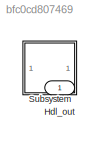
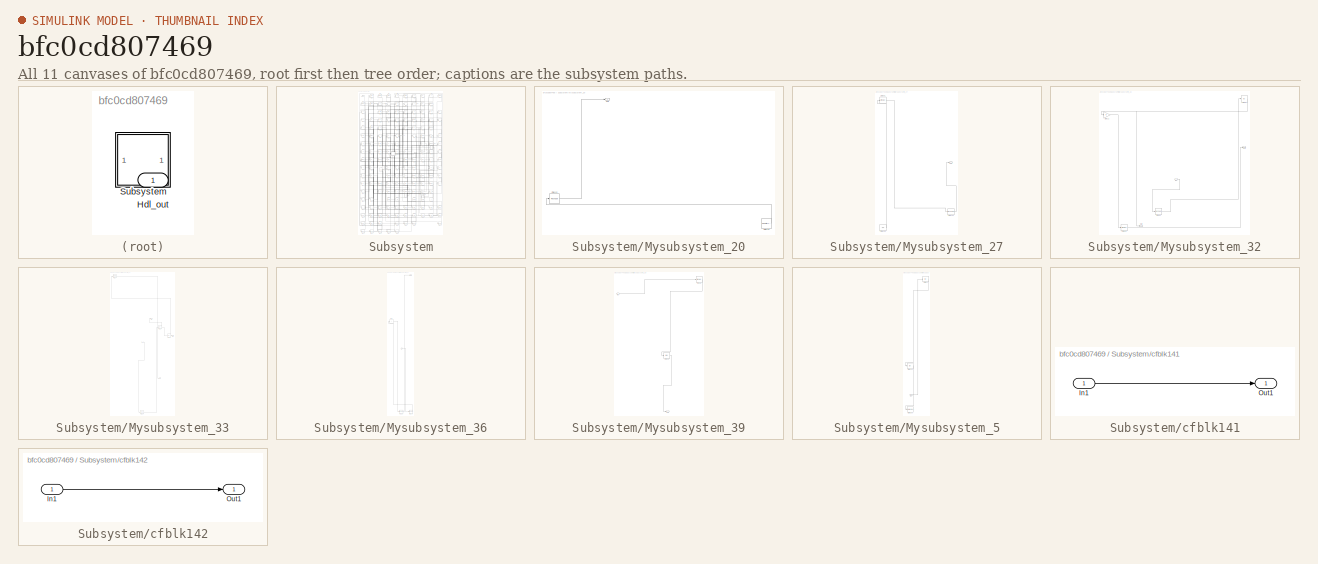
[diagram: thumbnail index - all 11 canvases of the model, root first then tree order]
MODEL slx_bfc0cd807469
KIND model
CONFIG AbsTol = auto
CONFIG EnableMultiTasking = off
CONFIG FixedStep = auto
CONFIG MaxStep = auto
CONFIG MinStep = auto
CONFIG RelTol = 1e-3
CONFIG SampleTimeConstraint = Unconstrained
CONFIG SolverName = VariableStepAuto
CONFIG StartTime = 0.0
CONFIG StopTime = 10.0
BLOCK [Outport] Hdl_out
  OutDataTypeStr = uint8
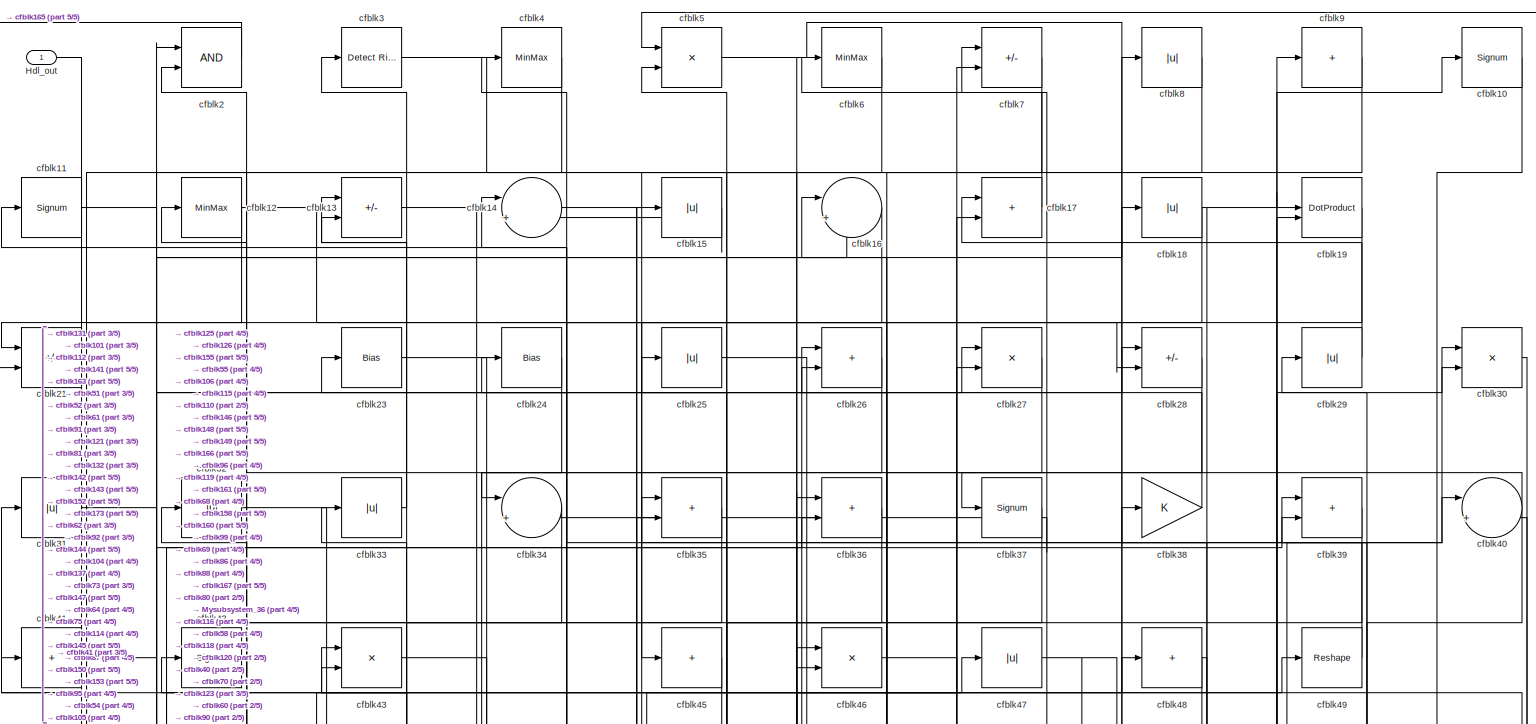
[diagram: Subsystem - part 1/5, full width, top band]
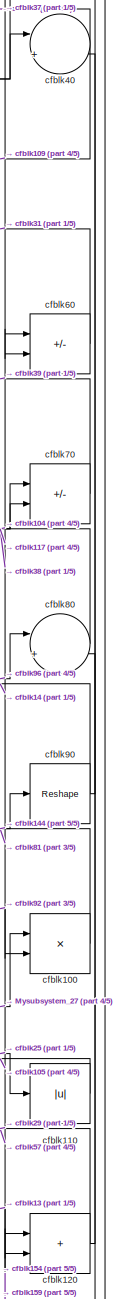
[diagram: Subsystem - part 2/5, middle right region]
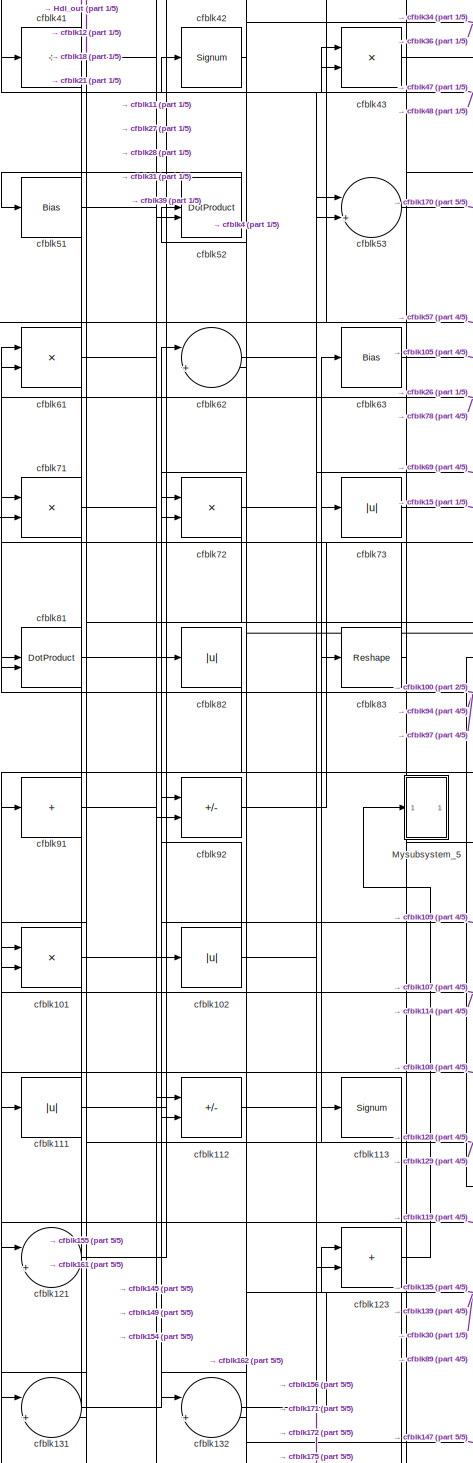
[diagram: Subsystem - part 3/5, middle left region]
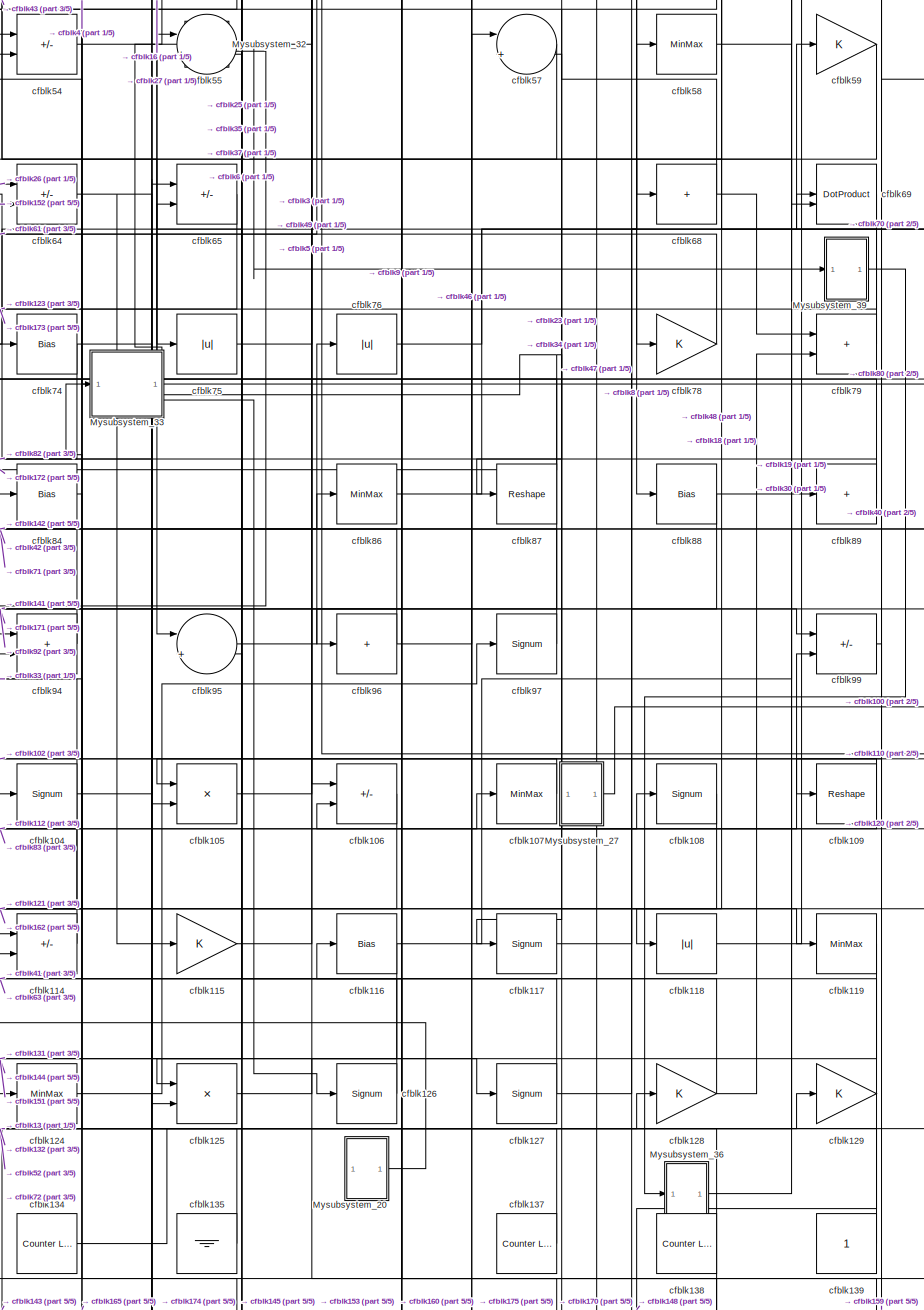
[diagram: Subsystem - part 4/5, central region]
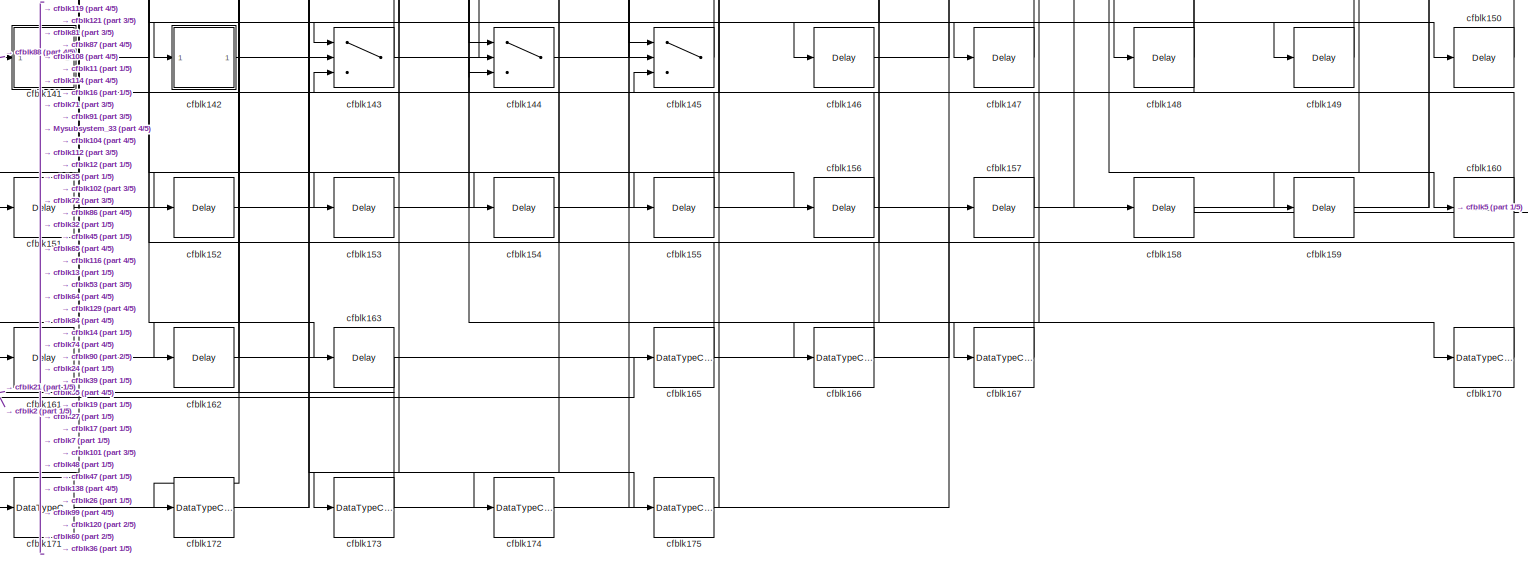
[diagram: Subsystem - part 5/5, full width, bottom band]
BLOCK [SubSystem] Subsystem
BLOCK [Outport] Subsystem/Hdl_out
  OutDataTypeStr = uint8
BLOCK [SubSystem] Subsystem/Mysubsystem_20
  RTWFcnName = Mysubsystem_20
  RTWFcnNameOpts = User specified
  RTWFileNameOpts = Use function name
  RTWSystemCode = Reusable function
  TreatAsAtomicUnit = on
BLOCK [Outport] Subsystem/Mysubsystem_20/Out1
BLOCK [Reshape] Subsystem/Mysubsystem_20/cfblk122
BLOCK [Reference] Subsystem/Mysubsystem_20/cfblk140  REF=hdlsllib/Sources/Counter
Limited
  SourceBlock = hdlsllib/Sources/Counter\nLimited
  SourceType = Counter Limited
BLOCK [SubSystem] Subsystem/Mysubsystem_27
  RTWFcnName = Mysubsystem_27
  RTWFcnNameOpts = User specified
  RTWFileNameOpts = Use function name
  RTWSystemCode = Reusable function
  TreatAsAtomicUnit = on
BLOCK [Outport] Subsystem/Mysubsystem_27/Out1
BLOCK [Reshape] Subsystem/Mysubsystem_27/cfblk130
BLOCK [Ground] Subsystem/Mysubsystem_27/cfblk136
BLOCK [MinMax] Subsystem/Mysubsystem_27/cfblk56
BLOCK [SubSystem] Subsystem/Mysubsystem_32
  RTWFcnName = Mysubsystem_32
  RTWFcnNameOpts = User specified
  RTWFileNameOpts = Use function name
  RTWSystemCode = Reusable function
  TreatAsAtomicUnit = on
BLOCK [Inport] Subsystem/Mysubsystem_32/In1
BLOCK [Outport] Subsystem/Mysubsystem_32/Out1
BLOCK [Outport] Subsystem/Mysubsystem_32/Out2
  Port = 2
BLOCK [Abs] Subsystem/Mysubsystem_32/cfblk20
  SaturateOnIntegerOverflow = off
BLOCK [Gain] Subsystem/Mysubsystem_32/cfblk22
BLOCK [Reshape] Subsystem/Mysubsystem_32/cfblk85
BLOCK [MinMax] Subsystem/Mysubsystem_32/cfblk93
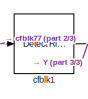
[diagram: Subsystem/Mysubsystem_33 - part 1/3, top left region]
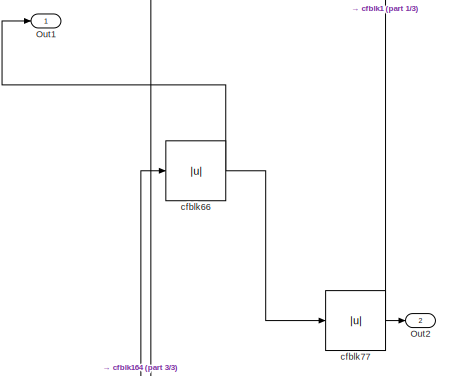
[diagram: Subsystem/Mysubsystem_33 - part 2/3, middle right region]
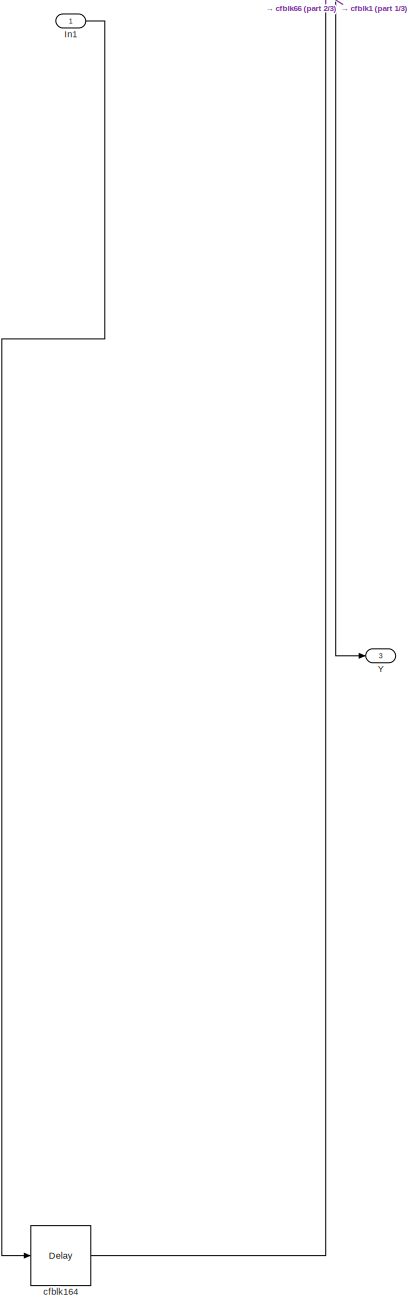
[diagram: Subsystem/Mysubsystem_33 - part 3/3, bottom center region]
BLOCK [SubSystem] Subsystem/Mysubsystem_33
  RTWFcnName = Mysubsystem_33
  RTWFcnNameOpts = User specified
  RTWFileNameOpts = Use function name
  RTWSystemCode = Reusable function
  TreatAsAtomicUnit = on
BLOCK [Inport] Subsystem/Mysubsystem_33/In1
BLOCK [Outport] Subsystem/Mysubsystem_33/Out1
BLOCK [Outport] Subsystem/Mysubsystem_33/Out2
  Port = 2
BLOCK [Outport] Subsystem/Mysubsystem_33/Y
  Port = 3
BLOCK [Reference] Subsystem/Mysubsystem_33/cfblk1  REF=hdlsllib/Logic and Bit
Operations/Detect Rise
Nonnegative
  SourceBlock = hdlsllib/Logic and Bit\nOperations/Detect Rise\nNonnegative
  SourceType = Detect Rise Nonnegative
BLOCK [Delay] Subsystem/Mysubsystem_33/cfblk164
  InputPortMap = u0
  SampleTime = 1
BLOCK [Abs] Subsystem/Mysubsystem_33/cfblk66
  SaturateOnIntegerOverflow = off
BLOCK [Abs] Subsystem/Mysubsystem_33/cfblk77
  SaturateOnIntegerOverflow = off
BLOCK [SubSystem] Subsystem/Mysubsystem_36
  RTWFcnName = Mysubsystem_36
  RTWFcnNameOpts = User specified
  RTWFileNameOpts = Use function name
  RTWSystemCode = Reusable function
  TreatAsAtomicUnit = on
BLOCK [Inport] Subsystem/Mysubsystem_36/In1
BLOCK [Outport] Subsystem/Mysubsystem_36/Out1
BLOCK [DataTypeConversion] Subsystem/Mysubsystem_36/cfblk168
  OutDataTypeStr = uint8
  RndMeth = Floor
  SaturateOnIntegerOverflow = off
BLOCK [DataTypeConversion] Subsystem/Mysubsystem_36/cfblk169
  OutDataTypeStr = uint8
  RndMeth = Floor
  SaturateOnIntegerOverflow = off
BLOCK [Sum] Subsystem/Mysubsystem_36/cfblk67
  IconShape = rectangular
  Inputs = +
BLOCK [SubSystem] Subsystem/Mysubsystem_39
  RTWFcnName = Mysubsystem_39
  RTWFcnNameOpts = User specified
  RTWFileNameOpts = Use function name
  RTWSystemCode = Reusable function
  TreatAsAtomicUnit = on
BLOCK [Inport] Subsystem/Mysubsystem_39/In1
BLOCK [Outport] Subsystem/Mysubsystem_39/Out1
BLOCK [MinMax] Subsystem/Mysubsystem_39/cfblk50
BLOCK [Bias] Subsystem/Mysubsystem_39/cfblk98
  Bias = 0.0
  SaturateOnIntegerOverflow = off
BLOCK [SubSystem] Subsystem/Mysubsystem_5
  RTWFcnName = Mysubsystem_5
  RTWFcnNameOpts = User specified
  RTWFileNameOpts = Use function name
  RTWSystemCode = Reusable function
  TreatAsAtomicUnit = on
BLOCK [Inport] Subsystem/Mysubsystem_5/In1
BLOCK [Abs] Subsystem/Mysubsystem_5/cfblk103
  SaturateOnIntegerOverflow = off
BLOCK [ToWorkspace] Subsystem/Mysubsystem_5/cfblk133
  MaxDataPoints = inf
  SampleTime = -1
  SaveFormat = Timeseries
  VariableName = simout
BLOCK [Abs] Subsystem/Mysubsystem_5/cfblk44
  SaturateOnIntegerOverflow = off
BLOCK [Signum] Subsystem/cfblk10
BLOCK [Product] Subsystem/cfblk100
  Inputs = */
  OutDataTypeStr = uint8
  RndMeth = Zero
  SaturateOnIntegerOverflow = on
BLOCK [Product] Subsystem/cfblk101
  Inputs = */
  OutDataTypeStr = uint8
  RndMeth = Zero
  SaturateOnIntegerOverflow = on
BLOCK [Abs] Subsystem/cfblk102
  OutDataTypeStr = uint8
  SaturateOnIntegerOverflow = off
BLOCK [Signum] Subsystem/cfblk104
BLOCK [Product] Subsystem/cfblk105
  Inputs = */
  OutDataTypeStr = uint8
  RndMeth = Zero
  SaturateOnIntegerOverflow = on
BLOCK [Sum] Subsystem/cfblk106
  IconShape = rectangular
  Inputs = +-
  OutDataTypeStr = uint8
BLOCK [MinMax] Subsystem/cfblk107
  OutDataTypeStr = uint8
BLOCK [Signum] Subsystem/cfblk108
BLOCK [Reshape] Subsystem/cfblk109
BLOCK [Signum] Subsystem/cfblk11
BLOCK [Abs] Subsystem/cfblk110
  OutDataTypeStr = uint8
  SaturateOnIntegerOverflow = off
BLOCK [Abs] Subsystem/cfblk111
  OutDataTypeStr = uint8
  SaturateOnIntegerOverflow = off
BLOCK [Sum] Subsystem/cfblk112
  IconShape = rectangular
  Inputs = +-
  OutDataTypeStr = uint8
BLOCK [Signum] Subsystem/cfblk113
BLOCK [Sum] Subsystem/cfblk114
  IconShape = rectangular
  Inputs = +-
  OutDataTypeStr = uint8
BLOCK [Gain] Subsystem/cfblk115
  OutDataTypeStr = uint8
BLOCK [Bias] Subsystem/cfblk116
  Bias = 0.0
  SaturateOnIntegerOverflow = off
BLOCK [Signum] Subsystem/cfblk117
BLOCK [Abs] Subsystem/cfblk118
  OutDataTypeStr = uint8
  SaturateOnIntegerOverflow = off
BLOCK [MinMax] Subsystem/cfblk119
  OutDataTypeStr = uint8
BLOCK [MinMax] Subsystem/cfblk12
  OutDataTypeStr = uint8
BLOCK [Sum] Subsystem/cfblk120
  IconShape = rectangular
  OutDataTypeStr = uint8
BLOCK [Sum] Subsystem/cfblk121
  Inputs = |++
  OutDataTypeStr = uint8
BLOCK [Sum] Subsystem/cfblk123
  IconShape = rectangular
  OutDataTypeStr = uint8
BLOCK [MinMax] Subsystem/cfblk124
  OutDataTypeStr = uint8
BLOCK [Product] Subsystem/cfblk125
  Inputs = */
  OutDataTypeStr = uint8
  RndMeth = Zero
  SaturateOnIntegerOverflow = on
BLOCK [Signum] Subsystem/cfblk126
BLOCK [Signum] Subsystem/cfblk127
BLOCK [Gain] Subsystem/cfblk128
  OutDataTypeStr = uint8
BLOCK [Gain] Subsystem/cfblk129
  OutDataTypeStr = uint8
BLOCK [Sum] Subsystem/cfblk13
  IconShape = rectangular
  Inputs = +-
  OutDataTypeStr = uint8
BLOCK [Sum] Subsystem/cfblk131
  Inputs = |++
  OutDataTypeStr = uint8
BLOCK [Sum] Subsystem/cfblk132
  Inputs = |++
  OutDataTypeStr = uint8
BLOCK [Reference] Subsystem/cfblk134  REF=hdlsllib/Sources/Counter
Limited
  SourceBlock = hdlsllib/Sources/Counter\nLimited
  SourceType = Counter Limited
BLOCK [Ground] Subsystem/cfblk135
BLOCK [Reference] Subsystem/cfblk137  REF=hdlsllib/Sources/Counter
Limited
  SourceBlock = hdlsllib/Sources/Counter\nLimited
  SourceType = Counter Limited
BLOCK [Reference] Subsystem/cfblk138  REF=hdlsllib/Sources/Counter
Limited
  SourceBlock = hdlsllib/Sources/Counter\nLimited
  SourceType = Counter Limited
BLOCK [Constant] Subsystem/cfblk139
  OutDataTypeStr = uint8
  SampleTime = -1
BLOCK [Sum] Subsystem/cfblk14
  Inputs = |++
  OutDataTypeStr = uint8
BLOCK [SubSystem] Subsystem/cfblk141
  LibrarySourceBlock = hdlsllib/Ports &\nSubsystems/Subsystem
BLOCK [Inport] Subsystem/cfblk141/In1
BLOCK [Outport] Subsystem/cfblk141/Out1
BLOCK [SubSystem] Subsystem/cfblk142
  LibrarySourceBlock = hdlsllib/Ports &\nSubsystems/Subsystem
BLOCK [Inport] Subsystem/cfblk142/In1
BLOCK [Outport] Subsystem/cfblk142/Out1
BLOCK [Switch] Subsystem/cfblk143
  InputSameDT = off
  OutDataTypeStr = uint8
  SaturateOnIntegerOverflow = off
BLOCK [Switch] Subsystem/cfblk144
  InputSameDT = off
  OutDataTypeStr = uint8
  SaturateOnIntegerOverflow = off
BLOCK [Switch] Subsystem/cfblk145
  InputSameDT = off
  OutDataTypeStr = uint8
  SaturateOnIntegerOverflow = off
BLOCK [Delay] Subsystem/cfblk146
  InputPortMap = u0
  SampleTime = 1
BLOCK [Delay] Subsystem/cfblk147
  InputPortMap = u0
  SampleTime = 1
BLOCK [Delay] Subsystem/cfblk148
  InputPortMap = u0
  SampleTime = 1
BLOCK [Delay] Subsystem/cfblk149
  InputPortMap = u0
  SampleTime = 1
BLOCK [Abs] Subsystem/cfblk15
  OutDataTypeStr = uint8
  SaturateOnIntegerOverflow = off
BLOCK [Delay] Subsystem/cfblk150
  InputPortMap = u0
  SampleTime = 1
BLOCK [Delay] Subsystem/cfblk151
  InputPortMap = u0
  SampleTime = 1
BLOCK [Delay] Subsystem/cfblk152
  InputPortMap = u0
  SampleTime = 1
BLOCK [Delay] Subsystem/cfblk153
  InputPortMap = u0
  SampleTime = 1
BLOCK [Delay] Subsystem/cfblk154
  InputPortMap = u0
  SampleTime = 1
BLOCK [Delay] Subsystem/cfblk155
  InputPortMap = u0
  SampleTime = 1
BLOCK [Delay] Subsystem/cfblk156
  InputPortMap = u0
  SampleTime = 1
BLOCK [Delay] Subsystem/cfblk157
  InputPortMap = u0
  SampleTime = 1
BLOCK [Delay] Subsystem/cfblk158
  InputPortMap = u0
  SampleTime = 1
BLOCK [Delay] Subsystem/cfblk159
  InputPortMap = u0
  SampleTime = 1
BLOCK [Sum] Subsystem/cfblk16
  Inputs = |++
  OutDataTypeStr = uint8
BLOCK [Delay] Subsystem/cfblk160
  InputPortMap = u0
  SampleTime = 1
BLOCK [Delay] Subsystem/cfblk161
  InputPortMap = u0
  SampleTime = 1
BLOCK [Delay] Subsystem/cfblk162
  InputPortMap = u0
  SampleTime = 1
BLOCK [Delay] Subsystem/cfblk163
  InputPortMap = u0
  SampleTime = 1
BLOCK [DataTypeConversion] Subsystem/cfblk165
  OutDataTypeStr = uint8
  RndMeth = Floor
  SaturateOnIntegerOverflow = off
BLOCK [DataTypeConversion] Subsystem/cfblk166
  OutDataTypeStr = uint8
  RndMeth = Floor
  SaturateOnIntegerOverflow = off
BLOCK [DataTypeConversion] Subsystem/cfblk167
  OutDataTypeStr = uint8
  RndMeth = Floor
  SaturateOnIntegerOverflow = off
BLOCK [Sum] Subsystem/cfblk17
  IconShape = rectangular
  OutDataTypeStr = uint8
BLOCK [DataTypeConversion] Subsystem/cfblk170
  OutDataTypeStr = uint8
  RndMeth = Floor
  SaturateOnIntegerOverflow = off
BLOCK [DataTypeConversion] Subsystem/cfblk171
  OutDataTypeStr = uint8
  RndMeth = Floor
  SaturateOnIntegerOverflow = off
BLOCK [DataTypeConversion] Subsystem/cfblk172
  OutDataTypeStr = uint8
  RndMeth = Floor
  SaturateOnIntegerOverflow = off
BLOCK [DataTypeConversion] Subsystem/cfblk173
  OutDataTypeStr = uint8
  RndMeth = Floor
  SaturateOnIntegerOverflow = off
BLOCK [DataTypeConversion] Subsystem/cfblk174
  OutDataTypeStr = uint8
  RndMeth = Floor
  SaturateOnIntegerOverflow = off
BLOCK [DataTypeConversion] Subsystem/cfblk175
  OutDataTypeStr = uint8
  RndMeth = Floor
  SaturateOnIntegerOverflow = off
BLOCK [Abs] Subsystem/cfblk18
  OutDataTypeStr = uint8
  SaturateOnIntegerOverflow = off
BLOCK [DotProduct] Subsystem/cfblk19
  OutDataTypeStr = uint8
BLOCK [Logic] Subsystem/cfblk2
  AllPortsSameDT = off
  OutDataTypeStr = boolean
BLOCK [Sum] Subsystem/cfblk21
  IconShape = rectangular
  Inputs = +-
  OutDataTypeStr = uint8
BLOCK [Bias] Subsystem/cfblk23
  Bias = 0.0
  SaturateOnIntegerOverflow = off
BLOCK [Bias] Subsystem/cfblk24
  Bias = 0.0
  SaturateOnIntegerOverflow = off
BLOCK [Abs] Subsystem/cfblk25
  OutDataTypeStr = uint8
  SaturateOnIntegerOverflow = off
BLOCK [Sum] Subsystem/cfblk26
  IconShape = rectangular
  OutDataTypeStr = uint8
BLOCK [Product] Subsystem/cfblk27
  Inputs = */
  OutDataTypeStr = uint8
  RndMeth = Zero
  SaturateOnIntegerOverflow = on
BLOCK [Sum] Subsystem/cfblk28
  IconShape = rectangular
  Inputs = +-
  OutDataTypeStr = uint8
BLOCK [Abs] Subsystem/cfblk29
  OutDataTypeStr = uint8
  SaturateOnIntegerOverflow = off
BLOCK [Reference] Subsystem/cfblk3  REF=hdlsllib/Logic and Bit
Operations/Detect Rise
Nonnegative
  SourceBlock = hdlsllib/Logic and Bit\nOperations/Detect Rise\nNonnegative
  SourceType = Detect Rise Nonnegative
BLOCK [Product] Subsystem/cfblk30
  Inputs = */
  OutDataTypeStr = uint8
  RndMeth = Zero
  SaturateOnIntegerOverflow = on
BLOCK [Abs] Subsystem/cfblk31
  OutDataTypeStr = uint8
  SaturateOnIntegerOverflow = off
BLOCK [Abs] Subsystem/cfblk32
  OutDataTypeStr = uint8
  SaturateOnIntegerOverflow = off
BLOCK [Abs] Subsystem/cfblk33
  OutDataTypeStr = uint8
  SaturateOnIntegerOverflow = off
BLOCK [Sum] Subsystem/cfblk34
  Inputs = |++
  OutDataTypeStr = uint8
BLOCK [Sum] Subsystem/cfblk35
  IconShape = rectangular
  OutDataTypeStr = uint8
BLOCK [Sum] Subsystem/cfblk36
  IconShape = rectangular
  OutDataTypeStr = uint8
BLOCK [Signum] Subsystem/cfblk37
BLOCK [Gain] Subsystem/cfblk38
  OutDataTypeStr = uint8
BLOCK [Sum] Subsystem/cfblk39
  IconShape = rectangular
  OutDataTypeStr = uint8
BLOCK [MinMax] Subsystem/cfblk4
  OutDataTypeStr = uint8
BLOCK [Sum] Subsystem/cfblk40
  Inputs = |++
  OutDataTypeStr = uint8
BLOCK [Sum] Subsystem/cfblk41
  IconShape = rectangular
  Inputs = +
  OutDataTypeStr = uint8
BLOCK [Signum] Subsystem/cfblk42
BLOCK [Product] Subsystem/cfblk43
  Inputs = */
  OutDataTypeStr = uint8
  RndMeth = Zero
  SaturateOnIntegerOverflow = on
BLOCK [Sum] Subsystem/cfblk45
  IconShape = rectangular
  Inputs = +
  OutDataTypeStr = uint8
BLOCK [Product] Subsystem/cfblk46
  Inputs = */
  OutDataTypeStr = uint8
  RndMeth = Zero
  SaturateOnIntegerOverflow = on
BLOCK [Abs] Subsystem/cfblk47
  OutDataTypeStr = uint8
  SaturateOnIntegerOverflow = off
BLOCK [Sum] Subsystem/cfblk48
  IconShape = rectangular
  Inputs = +
  OutDataTypeStr = uint8
BLOCK [Reshape] Subsystem/cfblk49
BLOCK [Product] Subsystem/cfblk5
  Inputs = */
  OutDataTypeStr = uint8
  RndMeth = Zero
  SaturateOnIntegerOverflow = on
BLOCK [Bias] Subsystem/cfblk51
  Bias = 0.0
  SaturateOnIntegerOverflow = off
BLOCK [DotProduct] Subsystem/cfblk52
  OutDataTypeStr = uint8
BLOCK [Sum] Subsystem/cfblk53
  Inputs = |++
  OutDataTypeStr = uint8
BLOCK [Sum] Subsystem/cfblk54
  IconShape = rectangular
  Inputs = +-
  OutDataTypeStr = uint8
BLOCK [Sum] Subsystem/cfblk55
  Inputs = |++
  OutDataTypeStr = uint8
BLOCK [Sum] Subsystem/cfblk57
  Inputs = |++
  OutDataTypeStr = uint8
BLOCK [MinMax] Subsystem/cfblk58
  OutDataTypeStr = uint8
BLOCK [Gain] Subsystem/cfblk59
  OutDataTypeStr = uint8
BLOCK [MinMax] Subsystem/cfblk6
  OutDataTypeStr = uint8
BLOCK [Sum] Subsystem/cfblk60
  IconShape = rectangular
  Inputs = +-
  OutDataTypeStr = uint8
BLOCK [Product] Subsystem/cfblk61
  Inputs = */
  OutDataTypeStr = uint8
  RndMeth = Zero
  SaturateOnIntegerOverflow = on
BLOCK [Sum] Subsystem/cfblk62
  Inputs = |++
  OutDataTypeStr = uint8
BLOCK [Bias] Subsystem/cfblk63
  Bias = 0.0
  SaturateOnIntegerOverflow = off
BLOCK [Sum] Subsystem/cfblk64
  IconShape = rectangular
  Inputs = +-
  OutDataTypeStr = uint8
BLOCK [Sum] Subsystem/cfblk65
  IconShape = rectangular
  Inputs = +-
  OutDataTypeStr = uint8
BLOCK [Sum] Subsystem/cfblk68
  IconShape = rectangular
  Inputs = +
  OutDataTypeStr = uint8
BLOCK [DotProduct] Subsystem/cfblk69
  OutDataTypeStr = uint8
BLOCK [Sum] Subsystem/cfblk7
  IconShape = rectangular
  Inputs = +-
  OutDataTypeStr = uint8
BLOCK [Sum] Subsystem/cfblk70
  IconShape = rectangular
  Inputs = +-
  OutDataTypeStr = uint8
BLOCK [Product] Subsystem/cfblk71
  Inputs = */
  OutDataTypeStr = uint8
  RndMeth = Zero
  SaturateOnIntegerOverflow = on
BLOCK [Product] Subsystem/cfblk72
  Inputs = */
  OutDataTypeStr = uint8
  RndMeth = Zero
  SaturateOnIntegerOverflow = on
BLOCK [Abs] Subsystem/cfblk73
  OutDataTypeStr = uint8
  SaturateOnIntegerOverflow = off
BLOCK [Bias] Subsystem/cfblk74
  Bias = 0.0
  SaturateOnIntegerOverflow = off
BLOCK [Abs] Subsystem/cfblk75
  OutDataTypeStr = uint8
  SaturateOnIntegerOverflow = off
BLOCK [Abs] Subsystem/cfblk76
  OutDataTypeStr = uint8
  SaturateOnIntegerOverflow = off
BLOCK [Gain] Subsystem/cfblk78
  OutDataTypeStr = uint8
BLOCK [Sum] Subsystem/cfblk79
  IconShape = rectangular
  OutDataTypeStr = uint8
BLOCK [Abs] Subsystem/cfblk8
  OutDataTypeStr = uint8
  SaturateOnIntegerOverflow = off
BLOCK [Sum] Subsystem/cfblk80
  Inputs = |++
  OutDataTypeStr = uint8
BLOCK [DotProduct] Subsystem/cfblk81
  OutDataTypeStr = uint8
BLOCK [Abs] Subsystem/cfblk82
  OutDataTypeStr = uint8
  SaturateOnIntegerOverflow = off
BLOCK [Reshape] Subsystem/cfblk83
BLOCK [Bias] Subsystem/cfblk84
  Bias = 0.0
  SaturateOnIntegerOverflow = off
BLOCK [MinMax] Subsystem/cfblk86
  OutDataTypeStr = uint8
BLOCK [Reshape] Subsystem/cfblk87
BLOCK [Bias] Subsystem/cfblk88
  Bias = 0.0
  SaturateOnIntegerOverflow = off
BLOCK [Sum] Subsystem/cfblk89
  IconShape = rectangular
  Inputs = +
  OutDataTypeStr = uint8
BLOCK [Sum] Subsystem/cfblk9
  IconShape = rectangular
  Inputs = +
  OutDataTypeStr = uint8
BLOCK [Reshape] Subsystem/cfblk90
BLOCK [Sum] Subsystem/cfblk91
  IconShape = rectangular
  Inputs = +
  OutDataTypeStr = uint8
BLOCK [Sum] Subsystem/cfblk92
  IconShape = rectangular
  Inputs = +-
  OutDataTypeStr = uint8
BLOCK [Sum] Subsystem/cfblk94
  IconShape = rectangular
  OutDataTypeStr = uint8
BLOCK [Sum] Subsystem/cfblk95
  Inputs = |++
  OutDataTypeStr = uint8
BLOCK [Sum] Subsystem/cfblk96
  IconShape = rectangular
  Inputs = +
  OutDataTypeStr = uint8
BLOCK [Signum] Subsystem/cfblk97
BLOCK [Sum] Subsystem/cfblk99
  IconShape = rectangular
  Inputs = +-
  OutDataTypeStr = uint8
LINE Subsystem/Mysubsystem_20/cfblk122:1 -> Subsystem/Mysubsystem_20/Out1:1
LINE Subsystem/Mysubsystem_20/cfblk140:1 -> Subsystem/Mysubsystem_20/cfblk122:1
LINE Subsystem/Mysubsystem_20:1 -> Subsystem/cfblk84:1
LINE Subsystem/Mysubsystem_27/cfblk130:1 -> Subsystem/Mysubsystem_27/Out1:1
LINE Subsystem/Mysubsystem_27/cfblk136:1 -> Subsystem/Mysubsystem_27/cfblk56:1
LINE Subsystem/Mysubsystem_27/cfblk56:1 -> Subsystem/Mysubsystem_27/cfblk130:1
LINE Subsystem/Mysubsystem_27:1 -> Subsystem/cfblk100:1
LINE Subsystem/Mysubsystem_32/In1:1 -> Subsystem/Mysubsystem_32/cfblk85:1
NET Subsystem/Mysubsystem_32/cfblk20:1 -> Subsystem/Mysubsystem_32/Out2:1, Subsystem/Mysubsystem_32/cfblk22:1
LINE Subsystem/Mysubsystem_32/cfblk22:1 -> Subsystem/Mysubsystem_32/cfblk93:1
LINE Subsystem/Mysubsystem_32/cfblk85:1 -> Subsystem/Mysubsystem_32/cfblk20:1
LINE Subsystem/Mysubsystem_32/cfblk93:1 -> Subsystem/Mysubsystem_32/Out1:1
LINE Subsystem/Mysubsystem_32:1 -> Subsystem/Mysubsystem_39:1
LINE Subsystem/Mysubsystem_32:2 -> Subsystem/cfblk94:1
LINE Subsystem/Mysubsystem_33/In1:1 -> Subsystem/Mysubsystem_33/cfblk164:1
LINE Subsystem/Mysubsystem_33/cfblk164:1 -> Subsystem/Mysubsystem_33/cfblk66:1
LINE Subsystem/Mysubsystem_33/cfblk1:1 -> Subsystem/Mysubsystem_33/Y:1
NET Subsystem/Mysubsystem_33/cfblk66:1 -> Subsystem/Mysubsystem_33/Out1:1, Subsystem/Mysubsystem_33/cfblk77:1
NET Subsystem/Mysubsystem_33/cfblk77:1 -> Subsystem/Mysubsystem_33/Out2:1, Subsystem/Mysubsystem_33/cfblk1:1
LINE Subsystem/Mysubsystem_33:1 -> Subsystem/Mysubsystem_32:1
NET Subsystem/Mysubsystem_33:2 -> Subsystem/Mysubsystem_33:1, Subsystem/cfblk117:1, Subsystem/cfblk172:1
LINE Subsystem/Mysubsystem_33:3 -> Subsystem/cfblk126:1
LINE Subsystem/Mysubsystem_36/In1:1 -> Subsystem/Mysubsystem_36/cfblk169:1
LINE Subsystem/Mysubsystem_36/cfblk168:1 -> Subsystem/Mysubsystem_36/Out1:1
LINE Subsystem/Mysubsystem_36/cfblk169:1 -> Subsystem/Mysubsystem_36/cfblk67:1
LINE Subsystem/Mysubsystem_36/cfblk67:1 -> Subsystem/Mysubsystem_36/cfblk168:1
LINE Subsystem/Mysubsystem_36:1 -> Subsystem/cfblk19:1
LINE Subsystem/Mysubsystem_39/In1:1 -> Subsystem/Mysubsystem_39/cfblk50:1
LINE Subsystem/Mysubsystem_39/cfblk50:1 -> Subsystem/Mysubsystem_39/cfblk98:1
LINE Subsystem/Mysubsystem_39/cfblk98:1 -> Subsystem/Mysubsystem_39/Out1:1
LINE Subsystem/Mysubsystem_39:1 -> Subsystem/Mysubsystem_36:1
LINE Subsystem/Mysubsystem_5/In1:1 -> Subsystem/Mysubsystem_5/cfblk44:1
LINE Subsystem/Mysubsystem_5/cfblk103:1 -> Subsystem/Mysubsystem_5/cfblk133:1
LINE Subsystem/Mysubsystem_5/cfblk44:1 -> Subsystem/Mysubsystem_5/cfblk103:1
LINE Subsystem/cfblk100:1 -> Subsystem/cfblk81:1
LINE Subsystem/cfblk101:1 -> Subsystem/cfblk26:1
NET Subsystem/cfblk102:1 -> Subsystem/cfblk156:1, Subsystem/cfblk92:1
NET Subsystem/cfblk104:1 -> Subsystem/cfblk162:1, Subsystem/cfblk33:1, Subsystem/cfblk70:2
NET Subsystem/cfblk105:1 -> Subsystem/cfblk35:1, Subsystem/cfblk40:1
LINE Subsystem/cfblk106:1 -> Subsystem/cfblk124:1
LINE Subsystem/cfblk107:1 -> Subsystem/cfblk104:1
LINE Subsystem/cfblk108:1 -> Subsystem/cfblk121:2
NET Subsystem/cfblk109:1 -> Subsystem/cfblk102:1, Subsystem/cfblk106:2
LINE Subsystem/cfblk10:1 -> Subsystem/cfblk60:2
LINE Subsystem/cfblk110:1 -> Subsystem/cfblk105:1
LINE Subsystem/cfblk111:1 -> Subsystem/cfblk113:1
LINE Subsystem/cfblk112:1 -> Subsystem/cfblk107:1
LINE Subsystem/cfblk113:1 -> Subsystem/cfblk132:2
LINE Subsystem/cfblk114:1 -> Subsystem/cfblk83:1
LINE Subsystem/cfblk115:1 -> Subsystem/cfblk49:1
NET Subsystem/cfblk116:1 -> Subsystem/cfblk144:3, Subsystem/cfblk19:2, Subsystem/cfblk99:2
LINE Subsystem/cfblk117:1 -> Subsystem/cfblk70:1
LINE Subsystem/cfblk118:1 -> Subsystem/cfblk30:1
NET Subsystem/cfblk119:1 -> Subsystem/cfblk131:2, Subsystem/cfblk151:1
NET Subsystem/cfblk11:1 -> Subsystem/cfblk163:1, Subsystem/cfblk52:2
NET Subsystem/cfblk120:1 -> Subsystem/cfblk29:1, Subsystem/cfblk57:2, Subsystem/cfblk80:2
NET Subsystem/cfblk121:1 -> Subsystem/cfblk161:1, Subsystem/cfblk47:1
LINE Subsystem/cfblk123:1 -> Subsystem/Mysubsystem_5:1
LINE Subsystem/cfblk124:1 -> Subsystem/cfblk97:1
LINE Subsystem/cfblk125:1 -> Subsystem/cfblk127:1
LINE Subsystem/cfblk126:1 -> Subsystem/cfblk5:2
NET Subsystem/cfblk127:1 -> Subsystem/cfblk54:2, Subsystem/cfblk69:1
NET Subsystem/cfblk128:1 -> Subsystem/cfblk63:1, Subsystem/cfblk79:2
NET Subsystem/cfblk129:1 -> Subsystem/cfblk148:1, Subsystem/cfblk41:1
NET Subsystem/cfblk12:1 -> Subsystem/cfblk121:1, Subsystem/cfblk28:2
NET Subsystem/cfblk131:1 -> Subsystem/Hdl_out:1, Subsystem/cfblk62:1
LINE Subsystem/cfblk132:1 -> Subsystem/cfblk89:1
LINE Subsystem/cfblk134:1 -> Subsystem/cfblk128:1
LINE Subsystem/cfblk135:1 -> Subsystem/cfblk72:2
LINE Subsystem/cfblk137:1 -> Subsystem/cfblk13:1
NET Subsystem/cfblk138:1 -> Subsystem/cfblk145:3, Subsystem/cfblk94:2
LINE Subsystem/cfblk139:1 -> Subsystem/cfblk52:1
NET Subsystem/cfblk13:1 -> Subsystem/cfblk120:2, Subsystem/cfblk147:1
LINE Subsystem/cfblk141/In1:1 -> Subsystem/cfblk141/Out1:1
NET Subsystem/cfblk141:1 -> Subsystem/cfblk108:1, Subsystem/cfblk114:2, Subsystem/cfblk16:2
LINE Subsystem/cfblk142/In1:1 -> Subsystem/cfblk142/Out1:1
LINE Subsystem/cfblk142:1 -> Subsystem/cfblk86:1
NET Subsystem/cfblk143:1 -> Subsystem/cfblk129:1, Subsystem/cfblk32:1
LINE Subsystem/cfblk144:1 -> Subsystem/cfblk90:1
LINE Subsystem/cfblk145:1 -> Subsystem/cfblk24:1
LINE Subsystem/cfblk146:1 -> Subsystem/cfblk17:2
LINE Subsystem/cfblk147:1 -> Subsystem/cfblk101:2
LINE Subsystem/cfblk148:1 -> Subsystem/cfblk16:1
LINE Subsystem/cfblk149:1 -> Subsystem/cfblk26:2
LINE Subsystem/cfblk14:1 -> Subsystem/cfblk150:1
LINE Subsystem/cfblk150:1 -> Subsystem/cfblk36:1
LINE Subsystem/cfblk151:1 -> Subsystem/cfblk143:2
LINE Subsystem/cfblk152:1 -> Subsystem/cfblk64:2
LINE Subsystem/cfblk153:1 -> Subsystem/cfblk35:2
LINE Subsystem/cfblk154:1 -> Subsystem/cfblk120:1
LINE Subsystem/cfblk155:1 -> Subsystem/cfblk81:2
LINE Subsystem/cfblk156:1 -> Subsystem/cfblk144:2
LINE Subsystem/cfblk157:1 -> Subsystem/cfblk143:3
LINE Subsystem/cfblk158:1 -> Subsystem/cfblk5:1
LINE Subsystem/cfblk159:1 -> Subsystem/cfblk60:1
LINE Subsystem/cfblk15:1 -> Subsystem/cfblk14:2
LINE Subsystem/cfblk160:1 -> Subsystem/cfblk95:2
LINE Subsystem/cfblk161:1 -> Subsystem/cfblk7:2
LINE Subsystem/cfblk162:1 -> Subsystem/cfblk112:2
LINE Subsystem/cfblk163:1 -> Subsystem/cfblk21:2
LINE Subsystem/cfblk165:1 -> Subsystem/cfblk74:1
LINE Subsystem/cfblk166:1 -> Subsystem/cfblk2:1
LINE Subsystem/cfblk167:1 -> Subsystem/cfblk2:2
LINE Subsystem/cfblk16:1 -> Subsystem/cfblk95:1
LINE Subsystem/cfblk170:1 -> Subsystem/cfblk116:1
LINE Subsystem/cfblk171:1 -> Subsystem/cfblk53:1
LINE Subsystem/cfblk172:1 -> Subsystem/cfblk53:2
NET Subsystem/cfblk173:1 -> Subsystem/cfblk12:1, Subsystem/cfblk157:1
LINE Subsystem/cfblk174:1 -> Subsystem/cfblk65:1
LINE Subsystem/cfblk175:1 -> Subsystem/cfblk65:2
LINE Subsystem/cfblk17:1 -> Subsystem/cfblk6:1
NET Subsystem/cfblk18:1 -> Subsystem/cfblk10:1, Subsystem/cfblk131:1, Subsystem/cfblk68:1
NET Subsystem/cfblk19:1 -> Subsystem/cfblk114:1, Subsystem/cfblk166:1
LINE Subsystem/cfblk21:1 -> Subsystem/cfblk101:1
LINE Subsystem/cfblk23:1 -> Subsystem/cfblk75:1
LINE Subsystem/cfblk24:1 -> Subsystem/cfblk152:1
LINE Subsystem/cfblk25:1 -> Subsystem/cfblk110:1
LINE Subsystem/cfblk26:1 -> Subsystem/cfblk64:1
LINE Subsystem/cfblk27:1 -> Subsystem/cfblk146:1
LINE Subsystem/cfblk28:1 -> Subsystem/cfblk34:1
LINE Subsystem/cfblk29:1 -> Subsystem/cfblk7:1
LINE Subsystem/cfblk2:1 -> Subsystem/cfblk165:1
LINE Subsystem/cfblk30:1 -> Subsystem/cfblk123:1
LINE Subsystem/cfblk31:1 -> Subsystem/cfblk112:1
LINE Subsystem/cfblk32:1 -> Subsystem/cfblk144:1
NET Subsystem/cfblk33:1 -> Subsystem/cfblk13:2, Subsystem/cfblk3:1
LINE Subsystem/cfblk34:1 -> Subsystem/cfblk132:1
LINE Subsystem/cfblk35:1 -> Subsystem/cfblk142:1
LINE Subsystem/cfblk36:1 -> Subsystem/cfblk73:1
LINE Subsystem/cfblk37:1 -> Subsystem/cfblk55:2
LINE Subsystem/cfblk38:1 -> Subsystem/cfblk17:1
LINE Subsystem/cfblk39:1 -> Subsystem/cfblk155:1
LINE Subsystem/cfblk3:1 -> Subsystem/cfblk106:1
NET Subsystem/cfblk40:1 -> Subsystem/cfblk109:1, Subsystem/cfblk37:1
LINE Subsystem/cfblk41:1 -> Subsystem/cfblk28:1
LINE Subsystem/cfblk42:1 -> Subsystem/cfblk72:1
LINE Subsystem/cfblk43:1 -> Subsystem/cfblk78:1
LINE Subsystem/cfblk45:1 -> Subsystem/cfblk143:1
LINE Subsystem/cfblk46:1 -> Subsystem/cfblk119:1
NET Subsystem/cfblk47:1 -> Subsystem/cfblk158:1, Subsystem/cfblk160:1, Subsystem/cfblk99:1
NET Subsystem/cfblk48:1 -> Subsystem/cfblk118:1, Subsystem/cfblk167:1, Subsystem/cfblk54:1
LINE Subsystem/cfblk49:1 -> Subsystem/cfblk11:1
NET Subsystem/cfblk4:1 -> Subsystem/cfblk62:2, Subsystem/cfblk92:2
LINE Subsystem/cfblk51:1 -> Subsystem/cfblk18:1
LINE Subsystem/cfblk52:1 -> Subsystem/cfblk51:1
LINE Subsystem/cfblk53:1 -> Subsystem/cfblk170:1
LINE Subsystem/cfblk54:1 -> Subsystem/cfblk27:2
LINE Subsystem/cfblk55:1 -> Subsystem/cfblk46:2
LINE Subsystem/cfblk57:1 -> Subsystem/cfblk71:2
LINE Subsystem/cfblk58:1 -> Subsystem/cfblk9:1
LINE Subsystem/cfblk59:1 -> Subsystem/cfblk87:1
NET Subsystem/cfblk5:1 -> Subsystem/cfblk69:2, Subsystem/cfblk88:1
LINE Subsystem/cfblk60:1 -> Subsystem/cfblk31:1
LINE Subsystem/cfblk61:1 -> Subsystem/cfblk27:1
LINE Subsystem/cfblk62:1 -> Subsystem/cfblk48:1
LINE Subsystem/cfblk63:1 -> Subsystem/cfblk105:2
NET Subsystem/cfblk64:1 -> Subsystem/cfblk115:1, Subsystem/cfblk125:2
LINE Subsystem/cfblk65:1 -> Subsystem/cfblk173:1
NET Subsystem/cfblk68:1 -> Subsystem/cfblk23:1, Subsystem/cfblk34:2, Subsystem/cfblk79:1
LINE Subsystem/cfblk69:1 -> Subsystem/cfblk123:2
LINE Subsystem/cfblk6:1 -> Subsystem/cfblk125:1
LINE Subsystem/cfblk70:1 -> Subsystem/cfblk39:2
NET Subsystem/cfblk71:1 -> Subsystem/cfblk145:2, Subsystem/cfblk154:1
NET Subsystem/cfblk72:1 -> Subsystem/cfblk111:1, Subsystem/cfblk175:1
LINE Subsystem/cfblk73:1 -> Subsystem/cfblk15:1
NET Subsystem/cfblk74:1 -> Subsystem/cfblk145:1, Subsystem/cfblk153:1
LINE Subsystem/cfblk75:1 -> Subsystem/cfblk46:1
LINE Subsystem/cfblk76:1 -> Subsystem/cfblk58:1
LINE Subsystem/cfblk78:1 -> Subsystem/cfblk61:2
LINE Subsystem/cfblk79:1 -> Subsystem/cfblk59:1
LINE Subsystem/cfblk7:1 -> Subsystem/cfblk45:1
LINE Subsystem/cfblk80:1 -> Subsystem/cfblk38:1
LINE Subsystem/cfblk81:1 -> Subsystem/cfblk39:1
LINE Subsystem/cfblk82:1 -> Subsystem/cfblk91:1
NET Subsystem/cfblk83:1 -> Subsystem/cfblk43:2, Subsystem/cfblk61:1
LINE Subsystem/cfblk84:1 -> Subsystem/cfblk174:1
LINE Subsystem/cfblk86:1 -> Subsystem/cfblk8:1
NET Subsystem/cfblk87:1 -> Subsystem/cfblk171:1, Subsystem/cfblk4:1, Subsystem/cfblk55:1
NET Subsystem/cfblk88:1 -> Subsystem/cfblk141:1, Subsystem/cfblk30:2
NET Subsystem/cfblk89:1 -> Subsystem/cfblk43:1, Subsystem/cfblk82:1
LINE Subsystem/cfblk8:1 -> Subsystem/cfblk21:1
NET Subsystem/cfblk90:1 -> Subsystem/cfblk14:1, Subsystem/cfblk40:2
NET Subsystem/cfblk91:1 -> Subsystem/cfblk149:1, Subsystem/cfblk36:2
NET Subsystem/cfblk92:1 -> Subsystem/cfblk100:2, Subsystem/cfblk57:1
LINE Subsystem/cfblk94:1 -> Subsystem/cfblk71:1
LINE Subsystem/cfblk95:1 -> Subsystem/cfblk76:1
NET Subsystem/cfblk96:1 -> Subsystem/cfblk25:1, Subsystem/cfblk80:1
LINE Subsystem/cfblk97:1 -> Subsystem/cfblk42:1
LINE Subsystem/cfblk99:1 -> Subsystem/cfblk159:1
LINE Subsystem/cfblk9:1 -> Subsystem/cfblk96:1
note: NET lines group one-source signal fan-out (src -> all destinations, sorted); 1:1 wires keep LINE
